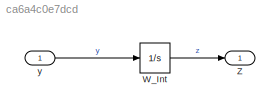
MODEL slx_ca6a4c0e7dcd
KIND model
CONFIG AbsTol = auto
CONFIG EnableMultiTasking = off
CONFIG FixedStep = auto
CONFIG MaxStep = 0.001
CONFIG MinStep = auto
CONFIG RelTol = 1e-3
CONFIG SampleTimeConstraint = Unconstrained
CONFIG SolverName = VariableStepAuto
CONFIG StartTime = 0.0
CONFIG StopTime = 50
WORKSPACE source: mxarray member
WORKSPACE f_r = [100 100]
WORKSPACE j = 1
BLOCK [Integrator] W_Int
  Ports = [1, 1]
BLOCK [Outport] Z
BLOCK [Inport] y
LINE W_Int:1 -> Z:1
LINE y:1 -> W_Int:1
